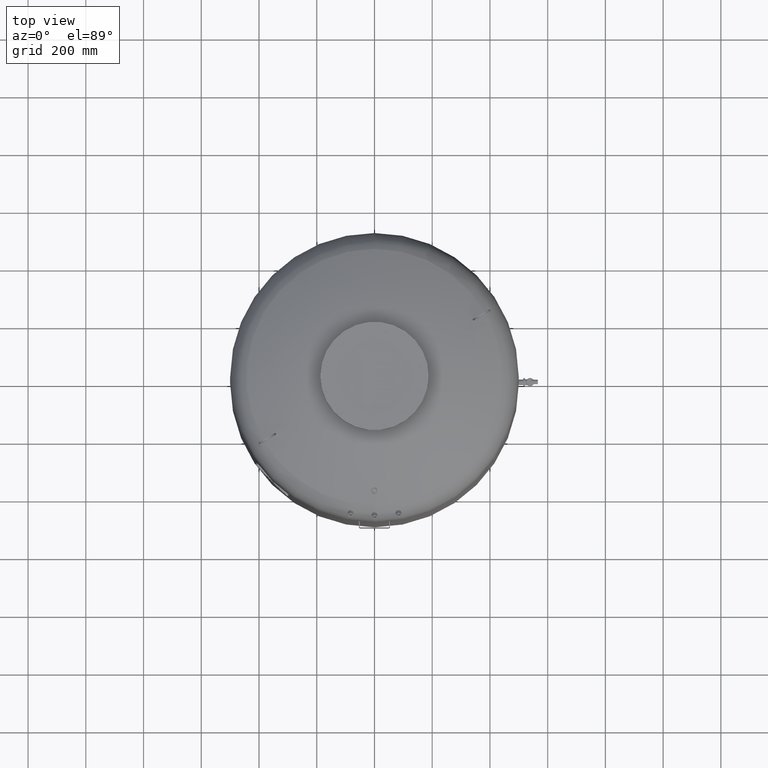
[diagram: clean part render]
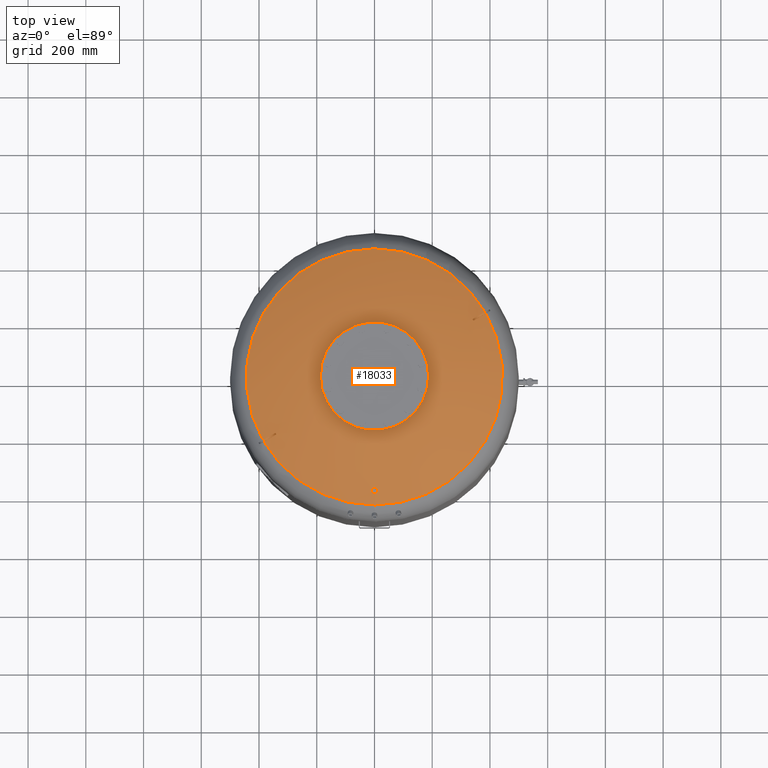
[diagram: same view with one face highlighted and labeled with its STEP entity id]
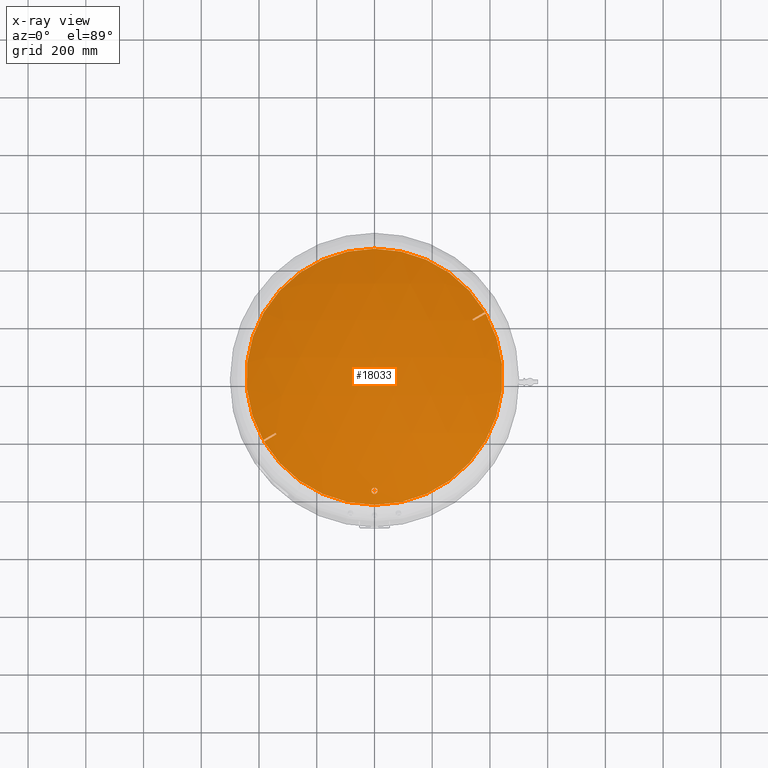
[diagram: x-ray of the same camera — body ghosted, the highlighted face saturated]
A machine part, top view. The second image highlights one B-rep face of the part: STEP entity #18033.
The next image is the same camera in x-ray: the body ghosted, the highlighted face saturated — about 0% of this face is hidden behind the body in this view.
In plain terms, the highlighted spherical surface has radius 1006 mm.
Its self-contained STEP definition (entity closure, byte-faithful):
#17253=CARTESIAN_POINT('',(-3.908790E-014,-405.650000000000260,1884.588984020556200));
#17254=VERTEX_POINT('',#17253);
#17270=CARTESIAN_POINT('',(-3.640557E-014,-384.350000000000310,1893.683321083045000));
#17271=VERTEX_POINT('',#17270);
#17278=CARTESIAN_POINT('',(-3.640557E-014,-384.350000000000310,1893.683321083045000));
#17279=CARTESIAN_POINT('',(-0.665860152353655,-384.350000000000310,1893.683321083045000));
#17280=CARTESIAN_POINT('',(-1.352442942655010,-384.413493201343950,1893.656345664296600));
#17281=CARTESIAN_POINT('',(-2.713633355070848,-384.678206448291690,1893.543865327939600));
#17282=CARTESIAN_POINT('',(-3.388255468701884,-384.879363254131820,1893.458386961982800));
#17283=CARTESIAN_POINT('',(-4.677454669311818,-385.406826358996680,1893.234199350034900));
#17284=CARTESIAN_POINT('',(-5.293206366508510,-385.733580979358980,1893.095298570944600));
#17285=CARTESIAN_POINT('',(-6.428331697670093,-386.481719264671140,1892.777177035073200));
#17286=CARTESIAN_POINT('',(-6.947700117297760,-386.903109139287950,1892.597952275997200));
#17287=CARTESIAN_POINT('',(-7.909636287544324,-387.834081206853450,1892.201861809002800));
#17288=CARTESIAN_POINT('',(-8.376160366441745,-388.383081861034950,1891.968214492085100));
#17289=CARTESIAN_POINT('',(-9.192501053923625,-389.573989263622760,1891.461152965227000));
#17290=CARTESIAN_POINT('',(-9.542402861482010,-390.215846098780390,1891.187758697381000));
#17291=CARTESIAN_POINT('',(-10.101594014471235,-391.549872709911260,1890.619263158526100));
#17292=CARTESIAN_POINT('',(-10.311280290466055,-392.242948286479990,1890.323775010501800));
#17293=CARTESIAN_POINT('',(-10.585512486448511,-393.632242428390440,1889.731167120131900));
#17294=CARTESIAN_POINT('',(-10.650000000000041,-394.328470643908420,1889.434042975025200));
#17295=CARTESIAN_POINT('',(-10.650000000000041,-395.671928854454110,1888.860441368647100));
#17296=CARTESIAN_POINT('',(-10.585436755065611,-396.368459275389510,1888.562914493158800));
#17297=CARTESIAN_POINT('',(-10.310997028739381,-397.758168296740220,1887.968999874574400));
#17298=CARTESIAN_POINT('',(-10.101180573862214,-398.451357011695900,1887.672608062775900));
#17299=CARTESIAN_POINT('',(-9.541744437114174,-399.785480792532890,1887.101906129284300));
#17300=CARTESIAN_POINT('',(-9.191730053175796,-400.427319361017400,1886.827210366023300));
#17301=CARTESIAN_POINT('',(-8.375195247171206,-401.618141837792960,1886.317358849592200));
#17302=CARTESIAN_POINT('',(-7.908589297177705,-402.167076661190660,1886.082225431730900));
#17303=CARTESIAN_POINT('',(-6.946718708499929,-403.097708589657710,1885.683472710236900));
#17304=CARTESIAN_POINT('',(-6.427520590182271,-403.518874737441710,1885.502952873024500));
#17305=CARTESIAN_POINT('',(-5.292718252443229,-404.266681241268540,1885.182351663167100));
#17306=CARTESIAN_POINT('',(-4.677118496836026,-404.593327823473600,1885.042269013025400));
#17307=CARTESIAN_POINT('',(-3.388156219151599,-405.120660706392070,1884.816088223712100));
#17308=CARTESIAN_POINT('',(-2.713616870227714,-405.321795323072650,1884.729798811288700));
#17309=CARTESIAN_POINT('',(-1.352501892994667,-405.586496768903600,1884.616232898850700));
#17310=CARTESIAN_POINT('',(-0.665911592797193,-405.650000000000260,1884.588984020556400));
#17311=CARTESIAN_POINT('',(-3.908790E-014,-405.650000000000260,1884.588984020556400));
#17312=B_SPLINE_CURVE_WITH_KNOTS('',3,(#17278,#17279,#17280,#17281,#17282,#17283,#17284,#17285,#17286,#17287,#17288,#17289,#17290,#17291,#17292,#17293,#17294,#17295,#17296,#17297,#17298,#17299,#17300,#17301,#17302,#17303,#17304,#17305,#17306,#17307,#17308,#17309,#17310,#17311),.UNSPECIFIED.,.F.,.U.,(4,2,2,2,2,2,2,2,2,2,2,2,2,2,2,2,4),(33.510705381107229,35.508285838168085,37.505866295228941,39.503446752289797,41.501027209350653,43.691556182371102,45.882085155391550,48.072614128411999,50.263143101432441,52.454975238236486,54.646807375040531,56.838639511844576,59.030471648648621,61.028206427040075,63.025941205431536,65.023675983822997,67.021410762214458),.UNSPECIFIED.);
#17313=EDGE_CURVE('',#17271,#17254,#17312,.T.);
#17534=CARTESIAN_POINT('',(2.959885E-014,443.777777777777600,1866.827383252533800));
#17535=VERTEX_POINT('',#17534);
#17543=CARTESIAN_POINT('',(382.814047410498800,224.481894937152840,1866.827383252533800));
#17544=VERTEX_POINT('',#17543);
#17545=CARTESIAN_POINT('',(1.205637E-015,-1.895250E-014,1866.827383252533800));
#17546=DIRECTION('',(0.0,0.0,-1.0));
#17547=DIRECTION('',(1.0,0.0,0.0));
#17548=AXIS2_PLACEMENT_3D('',#17545,#17546,#17547);
#17549=CIRCLE('',#17548,443.777777777777600);
#17550=EDGE_CURVE('',#17535,#17544,#17549,.T.);
#17577=CARTESIAN_POINT('',(385.814047410498740,219.285742514446160,1866.827383252533800));
#17578=VERTEX_POINT('',#17577);
#17590=CARTESIAN_POINT('',(-2.474646E-014,-443.777777777777600,1866.827383252533800));
#17591=VERTEX_POINT('',#17590);
#17592=CARTESIAN_POINT('',(1.205637E-015,-1.895250E-014,1866.827383252533800));
#17593=DIRECTION('',(0.0,0.0,-1.0));
#17594=DIRECTION('',(1.0,0.0,0.0));
#17595=AXIS2_PLACEMENT_3D('',#17592,#17593,#17594);
#17596=CIRCLE('',#17595,443.777777777777600);
#17597=EDGE_CURVE('',#17578,#17591,#17596,.T.);
#17714=CARTESIAN_POINT('',(-382.814047410493060,-224.481894937162560,1866.827383252533800));
#17715=VERTEX_POINT('',#17714);
#17716=CARTESIAN_POINT('',(1.205637E-015,-1.895250E-014,1866.827383252533800));
#17717=DIRECTION('',(0.0,0.0,-1.0));
#17718=DIRECTION('',(1.0,0.0,0.0));
#17719=AXIS2_PLACEMENT_3D('',#17716,#17717,#17718);
#17720=CIRCLE('',#17719,443.777777777777600);
#17721=EDGE_CURVE('',#17591,#17715,#17720,.T.);
#17748=CARTESIAN_POINT('',(-385.814047410493120,-219.285742514455960,1866.827383252533800));
#17749=VERTEX_POINT('',#17748);
#17761=CARTESIAN_POINT('',(1.205637E-015,-1.895250E-014,1866.827383252533800));
#17762=DIRECTION('',(0.0,0.0,-1.0));
#17763=DIRECTION('',(1.0,0.0,0.0));
#17764=AXIS2_PLACEMENT_3D('',#17761,#17762,#17763);
#17765=CIRCLE('',#17764,443.777777777777600);
#17766=EDGE_CURVE('',#17749,#17535,#17765,.T.);
#17932=CARTESIAN_POINT('',(9.910502E-014,-1.847992E-013,963.999999999999890));
#17933=DIRECTION('',(0.0,-1.0,0.0));
#17934=DIRECTION('',(-1.0,0.0,0.0));
#17935=AXIS2_PLACEMENT_3D('',#17932,#17933,#17934);
#17936=SPHERICAL_SURFACE('',#17935,1006.000000000000100);
#17937=CARTESIAN_POINT('',(-339.751865728368670,-199.619932751095800,1889.611447737408100));
#17938=VERTEX_POINT('',#17937);
#17939=CARTESIAN_POINT('',(1.500000000004920,-2.598076211361895,963.999999999999890));
#17940=DIRECTION('',(0.499999999999994,-0.866025403784442,0.0));
#17941=DIRECTION('',(0.0,0.0,1.0));
#17942=AXIS2_PLACEMENT_3D('',#17939,#17940,#17941);
#17943=CIRCLE('',#17942,1005.995526829021300);
#17944=EDGE_CURVE('',#17938,#17715,#17943,.T.);
#17945=ORIENTED_EDGE('',*,*,#17944,.T.);
#17946=ORIENTED_EDGE('',*,*,#17721,.F.);
#17947=ORIENTED_EDGE('',*,*,#17597,.F.);
#17948=CARTESIAN_POINT('',(342.751865728374640,194.423780328378940,1889.611447737408100));
#17949=VERTEX_POINT('',#17948);
#17950=CARTESIAN_POINT('',(1.500000000004958,-2.598076211361873,963.999999999999890));
#17951=DIRECTION('',(0.500000000000006,-0.866025403784435,0.0));
#17952=DIRECTION('',(0.0,0.0,1.0));
#17953=AXIS2_PLACEMENT_3D('',#17950,#17951,#17952);
#17954=CIRCLE('',#17953,1005.995526829021500);
#17955=EDGE_CURVE('',#17578,#17949,#17954,.T.);
#17956=ORIENTED_EDGE('',*,*,#17955,.T.);
#17957=CARTESIAN_POINT('',(339.751865728374580,199.619932751085570,1889.611447737407800));
#17958=VERTEX_POINT('',#17957);
#17959=CARTESIAN_POINT('',(110.683197430718480,63.902973831394576,928.593010303164870));
#17960=DIRECTION('',(-0.834590199910595,-0.481850876581413,0.266981143436977));
#17961=DIRECTION('',(0.0,0.484652475916126,0.874706795211040));
#17962=AXIS2_PLACEMENT_3D('',#17959,#17960,#17961);
#17963=CIRCLE('',#17962,997.220128568725610);
#17964=EDGE_CURVE('',#17949,#17958,#17963,.T.);
#17965=ORIENTED_EDGE('',*,*,#17964,.T.);
#17966=CARTESIAN_POINT('',(-1.499999999995094,2.598076211344762,963.999999999999890));
#17967=DIRECTION('',(-0.500000000000006,0.866025403784435,0.0));
#17968=DIRECTION('',(0.0,0.0,-1.0));
#17969=AXIS2_PLACEMENT_3D('',#17966,#17967,#17968);
#17970=CIRCLE('',#17969,1005.995526829021500);
#17971=EDGE_CURVE('',#17958,#17544,#17970,.T.);
#17972=ORIENTED_EDGE('',*,*,#17971,.T.);
#17973=ORIENTED_EDGE('',*,*,#17550,.F.);
#17974=ORIENTED_EDGE('',*,*,#17766,.F.);
#17975=CARTESIAN_POINT('',(-342.751865728368730,-194.423780328389170,1889.611447737407800));
#17976=VERTEX_POINT('',#17975);
#17977=CARTESIAN_POINT('',(-1.499999999995070,2.598076211344809,963.999999999999890));
#17978=DIRECTION('',(-0.499999999999994,0.866025403784442,0.0));
#17979=DIRECTION('',(0.0,0.0,-1.0));
#17980=AXIS2_PLACEMENT_3D('',#17977,#17978,#17979);
#17981=CIRCLE('',#17980,1005.995526829021300);
#17982=EDGE_CURVE('',#17749,#17976,#17981,.T.);
#17983=ORIENTED_EDGE('',*,*,#17982,.T.);
#17984=CARTESIAN_POINT('',(-110.683197430719060,-63.902973831393346,928.593010303164870));
#17985=DIRECTION('',(0.834590199910602,0.481850876581402,0.266981143436977));
#17986=DIRECTION('',(0.0,0.484652475916135,-0.874706795211035));
#17987=AXIS2_PLACEMENT_3D('',#17984,#17985,#17986);
#17988=CIRCLE('',#17987,997.220128568725390);
#17989=EDGE_CURVE('',#17976,#17938,#17988,.T.);
#17990=ORIENTED_EDGE('',*,*,#17989,.T.);
#17991=EDGE_LOOP('',(#17945,#17946,#17947,#17956,#17965,#17972,#17973,#17974,#17983,#17990));
#17992=FACE_OUTER_BOUND('',#17991,.T.);
#17993=CARTESIAN_POINT('',(-3.908790E-014,-405.650000000000260,1884.588984020556200));
#17994=CARTESIAN_POINT('',(0.665911592797114,-405.650000000000260,1884.588984020556400));
#17995=CARTESIAN_POINT('',(1.352501892994589,-405.586496768903600,1884.616232898850700));
#17996=CARTESIAN_POINT('',(2.713616870227634,-405.321795323072650,1884.729798811288700));
#17997=CARTESIAN_POINT('',(3.388156219151519,-405.120660706392070,1884.816088223712100));
#17998=CARTESIAN_POINT('',(4.677118496835944,-404.593327823473600,1885.042269013025400));
#17999=CARTESIAN_POINT('',(5.292718252443149,-404.266681241268540,1885.182351663167100));
#18000=CARTESIAN_POINT('',(6.427520590182191,-403.518874737441710,1885.502952873024500));
#18001=CARTESIAN_POINT('',(6.946718708499848,-403.097708589657710,1885.683472710236900));
#18002=CARTESIAN_POINT('',(7.908589297177626,-402.167076661190660,1886.082225431730900));
#18003=CARTESIAN_POINT('',(8.375195247171130,-401.618141837792960,1886.317358849592200));
#18004=CARTESIAN_POINT('',(9.191730053175720,-400.427319361017400,1886.827210366023300));
#18005=CARTESIAN_POINT('',(9.541744437114099,-399.785480792532890,1887.101906129284300));
#18006=CARTESIAN_POINT('',(10.101180573862139,-398.451357011695900,1887.672608062775900));
#18007=CARTESIAN_POINT('',(10.310997028739306,-397.758168296740220,1887.968999874574400));
#18008=CARTESIAN_POINT('',(10.585436755065537,-396.368459275389510,1888.562914493158800));
#18009=CARTESIAN_POINT('',(10.649999999999967,-395.671928854454110,1888.860441368647100));
#18010=CARTESIAN_POINT('',(10.649999999999967,-394.328470643908420,1889.434042975025200));
#18011=CARTESIAN_POINT('',(10.585512486448435,-393.632242428390440,1889.731167120131900));
#18012=CARTESIAN_POINT('',(10.311280290465971,-392.242948286479930,1890.323775010501800));
#18013=CARTESIAN_POINT('',(10.101594014471120,-391.549872709911200,1890.619263158526100));
#18014=CARTESIAN_POINT('',(9.542402861481886,-390.215846098780330,1891.187758697381000));
#18015=CARTESIAN_POINT('',(9.192501053923527,-389.573989263622650,1891.461152965227300));
#18016=CARTESIAN_POINT('',(8.376160366441681,-388.383081861034900,1891.968214492085100));
#18017=CARTESIAN_POINT('',(7.909636287544253,-387.834081206853510,1892.201861809002800));
#18018=CARTESIAN_POINT('',(6.947700117297689,-386.903109139287950,1892.597952275997200));
#18019=CARTESIAN_POINT('',(6.428331697670018,-386.481719264671140,1892.777177035073200));
#18020=CARTESIAN_POINT('',(5.293206366508434,-385.733580979358980,1893.095298570944600));
#18021=CARTESIAN_POINT('',(4.677454669311745,-385.406826358996680,1893.234199350034900));
#18022=CARTESIAN_POINT('',(3.388255468701813,-384.879363254131820,1893.458386961982800));
#18023=CARTESIAN_POINT('',(2.713633355070776,-384.678206448291690,1893.543865327939600));
#18024=CARTESIAN_POINT('',(1.352442942654939,-384.413493201343950,1893.656345664296600));
#18025=CARTESIAN_POINT('',(0.665860152353582,-384.350000000000310,1893.683321083045000));
#18026=CARTESIAN_POINT('',(-3.640557E-014,-384.350000000000310,1893.683321083045000));
#18027=B_SPLINE_CURVE_WITH_KNOTS('',3,(#17993,#17994,#17995,#17996,#17997,#17998,#17999,#18000,#18001,#18002,#18003,#18004,#18005,#18006,#18007,#18008,#18009,#18010,#18011,#18012,#18013,#18014,#18015,#18016,#18017,#18018,#18019,#18020,#18021,#18022,#18023,#18024,#18025,#18026),.UNSPECIFIED.,.F.,.U.,(4,2,2,2,2,2,2,2,2,2,2,2,2,2,2,2,4),(0.0,1.997734778391459,3.995469556782918,5.993204335174378,7.990939113565837,10.182771250369882,12.374603387173927,14.566435523977972,16.758267660782018,18.948796633802466,21.139325606822911,23.329854579843357,25.520383552863805,27.517964009924661,29.515544466985517,31.513124924046373,33.510705381107229),.UNSPECIFIED.);
#18028=EDGE_CURVE('',#17254,#17271,#18027,.T.);
#18029=ORIENTED_EDGE('',*,*,#18028,.F.);
#18030=ORIENTED_EDGE('',*,*,#17313,.F.);
#18031=EDGE_LOOP('',(#18029,#18030));
#18032=FACE_BOUND('',#18031,.T.);
#18033=ADVANCED_FACE('',(#17992,#18032),#17936,.T.);